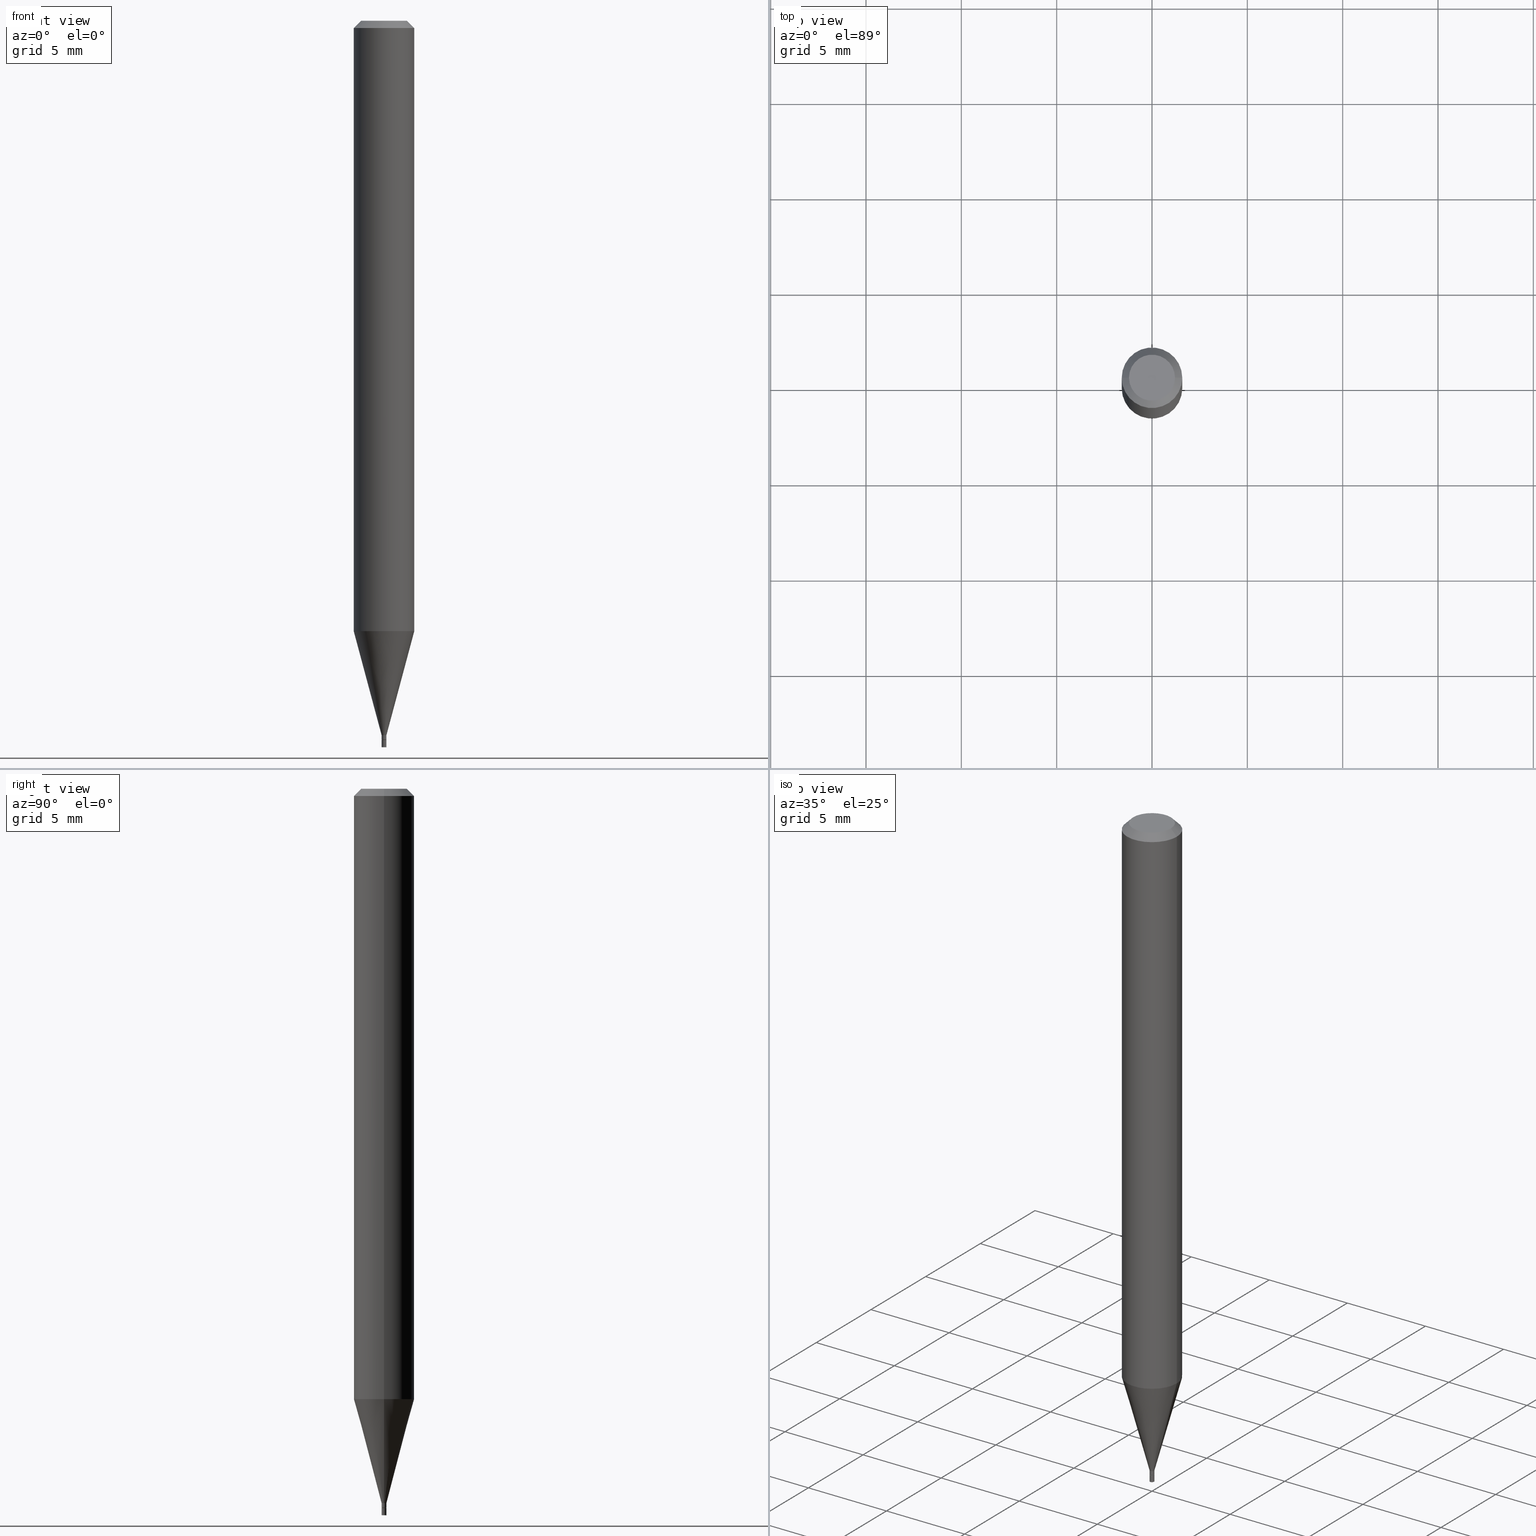
[diagram: canonical four-view strip — front | top / right | iso, engineering-drawing reading convention]
A machine part, canonical four-view strip (front | top / right | iso — engineering-drawing reading convention). The complete STEP part file that produces these views, byte-faithful:
ISO-10303-21;
HEADER;
FILE_DESCRIPTION (( 'STEP AP203' ),
    '1' );
FILE_NAME ('02243.STEP',
    '2024-03-18T19:56:29',
    ( '' ),
    ( '' ),
    'SwSTEP 2.0',
    'SolidWorks 2023',
    '' );
FILE_SCHEMA (( 'CONFIG_CONTROL_DESIGN' ));
ENDSEC;

DATA;
#1 = VECTOR ( 'NONE', #193, 39.37007874015748143 ) ;
#2 = DIRECTION ( 'NONE',  ( -1.000000000000000000, 6.982962677686266711E-15, 0.000000000000000000 ) ) ;
#3 = LINE ( 'NONE', #40, #336 ) ;
#4 = LINE ( 'NONE', #334, #251 ) ;
#5 = PLANE ( 'NONE',  #71 ) ;
#6 = DIRECTION ( 'NONE',  ( -2.445468806185136597E-29, 3.491481338843145583E-15, 1.000000000000000000 ) ) ;
#7 = PERSON_AND_ORGANIZATION ( #386, #438 ) ;
#8 = EDGE_LOOP ( 'NONE', ( #353, #412 ) ) ;
#9 = AXIS2_PLACEMENT_3D ( 'NONE', #346, #240, #381 ) ;
#10 = DIRECTION ( 'NONE',  ( -2.445468806185136597E-29, 3.491481338843145583E-15, 1.000000000000000000 ) ) ;
#11 = CIRCLE ( 'NONE', #360, 0.04749999999999999362 ) ;
#12 = APPROVAL_STATUS ( 'not_yet_approved' ) ;
#13 = CALENDAR_DATE ( 2024, 18, 3 ) ;
#14 = DATE_AND_TIME ( #53, #315 ) ;
#15 = CYLINDRICAL_SURFACE ( 'NONE', #451, 0.004999999999999922909 ) ;
#16 = CONICAL_SURFACE ( 'NONE', #145, 0.004999999999999922042, 0.2617993877991500740 ) ;
#17 = AXIS2_PLACEMENT_3D ( 'NONE', #292, #142, #37 ) ;
#18 = ORIENTED_EDGE ( 'NONE', *, *, #374, .T. ) ;
#19 = FACE_OUTER_BOUND ( 'NONE', #375, .T. ) ;
#20 = ORIENTED_EDGE ( 'NONE', *, *, #269, .F. ) ;
#21 = CARTESIAN_POINT ( 'NONE',  ( 0.004499999999999999660, -5.216273120231659345E-15, -1.485000000000000098 ) ) ;
#22 = ORIENTED_EDGE ( 'NONE', *, *, #306, .F. ) ;
#23 = VERTEX_POINT ( 'NONE', #48 ) ;
#24 = CARTESIAN_POINT ( 'NONE',  ( 3.607066489123076592E-29, -5.149934974793640632E-15, -1.475000000000000311 ) ) ;
#25 = ORIENTED_EDGE ( 'NONE', *, *, #326, .T. ) ;
#26 = AXIS2_PLACEMENT_3D ( 'NONE', #299, #10, #111 ) ;
#27 = VECTOR ( 'NONE', #324, 39.37007874015747433 ) ;
#28 = EDGE_CURVE ( 'NONE', #385, #61, #321, .T. ) ;
#29 = EDGE_LOOP ( 'NONE', ( #387, #248, #351, #170 ) ) ;
#30 = EDGE_CURVE ( 'NONE', #416, #274, #3, .T. ) ;
#31 = CARTESIAN_POINT ( 'NONE',  ( 3.631521177184928138E-29, -5.184849788182071492E-15, -1.485000000000000098 ) ) ;
#32 = VERTEX_POINT ( 'NONE', #45 ) ;
#33 = PLANE ( 'NONE',  #445 ) ;
#34 = DIRECTION ( 'NONE',  ( -2.445468806185136597E-29, 3.491481338843145583E-15, 1.000000000000000000 ) ) ;
#35 = VECTOR ( 'NONE', #156, 39.37007874015748854 ) ;
#36 = CC_DESIGN_APPROVAL ( #288, ( #72 ) ) ;
#37 = DIRECTION ( 'NONE',  ( 1.000000000000000000, -6.982962677686247778E-15, 0.000000000000000000 ) ) ;
#38 = LINE ( 'NONE', #466, #389 ) ;
#39 = CARTESIAN_POINT ( 'NONE',  ( -0.06250000000000000000, -1.782440797268646111E-15, -0.01499999999999999944 ) ) ;
#40 = CARTESIAN_POINT ( 'NONE',  ( -0.004999999999999922909, 3.552713678800446153E-17, -2.459467545127415038E-31 ) ) ;
#41 = EDGE_CURVE ( 'NONE', #167, #459, #338, .T. ) ;
#42 = AXIS2_PLACEMENT_3D ( 'NONE', #366, #435, #225 ) ;
#43 = EDGE_CURVE ( 'NONE', #88, #409, #113, .T. ) ;
#44 = APPROVAL_PERSON_ORGANIZATION ( #231, #288, #268 ) ;
#45 = CARTESIAN_POINT ( 'NONE',  ( -0.004499999999999999660, -5.150226137898756937E-15, -1.485000000000000098 ) ) ;
#46 = DIRECTION ( 'NONE',  ( 2.445468806185136597E-29, -3.491481338843145583E-15, -1.000000000000000000 ) ) ;
#47 = FACE_OUTER_BOUND ( 'NONE', #136, .T. ) ;
#48 = CARTESIAN_POINT ( 'NONE',  ( -0.005000000000000000104, -5.175508761435389793E-15, -1.485000000000000098 ) ) ;
#49 = APPLICATION_PROTOCOL_DEFINITION ( 'international standard', 'config_control_design', 1994, #177 ) ;
#50 = LOCAL_TIME ( 15, 56, 29.00000000000000000, #434 ) ;
#51 = ADVANCED_FACE ( 'NONE', ( #47 ), #5, .F. ) ;
#52 = CC_DESIGN_PERSON_AND_ORGANIZATION_ASSIGNMENT ( #197, #332, ( #72 ) ) ;
#53 = CALENDAR_DATE ( 2024, 18, 3 ) ;
#54 = AXIS2_PLACEMENT_3D ( 'NONE', #241, #203, #342 ) ;
#55 = DIRECTION ( 'NONE',  ( -2.445468806185136597E-29, 3.491481338843145583E-15, 1.000000000000000000 ) ) ;
#56 = ORIENTED_EDGE ( 'NONE', *, *, #363, .T. ) ;
#57 = CYLINDRICAL_SURFACE ( 'NONE', #271, 0.06250000000000000000 ) ;
#58 = ORIENTED_EDGE ( 'NONE', *, *, #30, .T. ) ;
#59 = ORIENTED_EDGE ( 'NONE', *, *, #62, .F. ) ;
#60 = FACE_OUTER_BOUND ( 'NONE', #380, .T. ) ;
#61 = VERTEX_POINT ( 'NONE', #192 ) ;
#62 = EDGE_CURVE ( 'NONE', #409, #347, #460, .T. ) ;
#63 = VERTEX_POINT ( 'NONE', #190 ) ;
#64 = DIRECTION ( 'NONE',  ( 1.000000000000000000, -6.982962677686266711E-15, 4.876176775795935793E-29 ) ) ;
#65 = ORIENTED_EDGE ( 'NONE', *, *, #62, .T. ) ;
#66 = AXIS2_PLACEMENT_3D ( 'NONE', #100, #318, #250 ) ;
#67 = ORIENTED_EDGE ( 'NONE', *, *, #234, .T. ) ;
#68 = CARTESIAN_POINT ( 'NONE',  ( 0.004999999999999922042, -5.184849788182071492E-15, -1.475000000000000311 ) ) ;
#69 = CARTESIAN_POINT ( 'NONE',  ( -0.005000000000000000104, -5.175508761435389793E-15, -1.500000000000000222 ) ) ;
#70 = CYLINDRICAL_SURFACE ( 'NONE', #272, 0.06250000000000000000 ) ;
#71 = AXIS2_PLACEMENT_3D ( 'NONE', #303, #258, #186 ) ;
#72 = SECURITY_CLASSIFICATION ( '', '', #86 ) ;
#73 = FACE_OUTER_BOUND ( 'NONE', #291, .T. ) ;
#74 = DIRECTION ( 'NONE',  ( -2.445468806185136597E-29, 3.491481338843145583E-15, 1.000000000000000000 ) ) ;
#75 = ADVANCED_FACE ( 'NONE', ( #154 ), #150, .T. ) ;
#76 = EDGE_LOOP ( 'NONE', ( #237, #286 ) ) ;
#77 = EDGE_CURVE ( 'NONE', #32, #167, #429, .T. ) ;
#78 = AXIS2_PLACEMENT_3D ( 'NONE', #391, #426, #393 ) ;
#79 = CONICAL_SURFACE ( 'NONE', #371, 0.06250000000000000000, 0.7853981633974373988 ) ;
#80 = CARTESIAN_POINT ( 'NONE',  ( 0.06250000000000000000, -4.811533449433679005E-16, -0.01499999999999999944 ) ) ;
#81 = ORIENTED_EDGE ( 'NONE', *, *, #465, .F. ) ;
#82 = EDGE_LOOP ( 'NONE', ( #98, #148, #419, #279 ) ) ;
#83 = CIRCLE ( 'NONE', #9, 0.005000000000000000104 ) ;
#84 = DATE_TIME_ROLE ( 'creation_date' ) ;
#85 = MANIFOLD_SOLID_BREP ( 'Body-Move/Copy2[2]', #343 ) ;
#86 = SECURITY_CLASSIFICATION_LEVEL ( 'unclassified' ) ;
#87 = DIRECTION ( 'NONE',  ( 1.000000000000000000, -6.982962677686246200E-15, 0.000000000000000000 ) ) ;
#88 = VERTEX_POINT ( 'NONE', #228 ) ;
#89 = ORIENTED_EDGE ( 'NONE', *, *, #283, .F. ) ;
#90 = MANIFOLD_SOLID_BREP ( 'Body-Move/Copy2[1]', #200 ) ;
#91 = VECTOR ( 'NONE', #378, 39.37007874015748143 ) ;
#92 = DIRECTION ( 'NONE',  ( 1.000000000000000000, -6.982962677686265922E-15, 4.876176775795935793E-29 ) ) ;
#93 = VECTOR ( 'NONE', #290, 39.37007874015748143 ) ;
#94 = ORIENTED_EDGE ( 'NONE', *, *, #77, .T. ) ;
#95 = DIRECTION ( 'NONE',  ( -2.445468806185136597E-29, 3.491481338843145583E-15, 1.000000000000000000 ) ) ;
#96 = ORIENTED_EDGE ( 'NONE', *, *, #441, .F. ) ;
#97 = CARTESIAN_POINT ( 'NONE',  ( 0.000000000000000000, 0.000000000000000000, 0.000000000000000000 ) ) ;
#98 = ORIENTED_EDGE ( 'NONE', *, *, #423, .T. ) ;
#99 = EDGE_CURVE ( 'NONE', #32, #416, #333, .T. ) ;
#100 = CARTESIAN_POINT ( 'NONE',  ( 3.630298442781835897E-29, -5.183104047512649988E-15, -1.484500000000000153 ) ) ;
#101 = CARTESIAN_POINT ( 'NONE',  ( 0.004999999999999922042, -5.184849788182071492E-15, -1.475000000000000311 ) ) ;
#102 = CARTESIAN_POINT ( 'NONE',  ( 0.005000000000000000104, -3.491481338843132862E-17, 2.438088387897967984E-31 ) ) ;
#103 = DIRECTION ( 'NONE',  ( 1.000000000000000000, -6.982962677686265922E-15, 4.876176775795935793E-29 ) ) ;
#104 = CIRCLE ( 'NONE', #388, 0.005000000000000000104 ) ;
#105 = CARTESIAN_POINT ( 'NONE',  ( 3.668203209277705088E-31, -5.237222008264718399E-17, -0.01499999999999999944 ) ) ;
#106 = ADVANCED_FACE ( 'NONE', ( #118 ), #406, .T. ) ;
#107 = ADVANCED_BREP_SHAPE_REPRESENTATION ( '02243', ( #90, #85, #256 ), #188 ) ;
#108 = DIRECTION ( 'NONE',  ( 1.000000000000000000, -6.982962677686266711E-15, 0.000000000000000000 ) ) ;
#109 = ADVANCED_FACE ( 'NONE', ( #19 ), #132, .F. ) ;
#110 =( NAMED_UNIT ( * ) SI_UNIT ( $, .STERADIAN. ) SOLID_ANGLE_UNIT ( ) );
#111 = DIRECTION ( 'NONE',  ( 1.000000000000000000, -6.982962677686267499E-15, 4.876176775795935793E-29 ) ) ;
#112 = CALENDAR_DATE ( 2024, 18, 3 ) ;
#113 = LINE ( 'NONE', #80, #1 ) ;
#114 = APPROVAL_PERSON_ORGANIZATION ( #7, #382, #233 ) ;
#115 = DIRECTION ( 'NONE',  ( 1.000000000000000000, 0.000000000000000000, 0.000000000000000000 ) ) ;
#116 = DATE_TIME_ROLE ( 'classification_date' ) ;
#117 = PRODUCT_RELATED_PRODUCT_CATEGORY ( 'detail', '', ( #189 ) ) ;
#118 = FACE_OUTER_BOUND ( 'NONE', #379, .T. ) ;
#119 = COORDINATED_UNIVERSAL_TIME_OFFSET ( 5, 0, .BEHIND. ) ;
#120 = PERSON_AND_ORGANIZATION_ROLE ( 'creator' ) ;
#121 = CIRCLE ( 'NONE', #437, 0.004499999999999999660 ) ;
#122 = ADVANCED_FACE ( 'NONE', ( #410 ), #454, .T. ) ;
#123 = DATE_AND_TIME ( #161, #173 ) ;
#124 = UNCERTAINTY_MEASURE_WITH_UNIT (LENGTH_MEASURE( 1.000000000000000082E-05 ), #191, 'distance_accuracy_value', 'NONE');
#125 = ADVANCED_FACE ( 'NONE', ( #243 ), #418, .F. ) ;
#126 = ORIENTED_EDGE ( 'NONE', *, *, #43, .T. ) ;
#127 = DIRECTION ( 'NONE',  ( -2.445468806185136597E-29, 3.491481338843145583E-15, 1.000000000000000000 ) ) ;
#128 = DIRECTION ( 'NONE',  ( 2.438088387897960049E-29, -3.491481338843145188E-15, -1.000000000000000000 ) ) ;
#129 = ORIENTED_EDGE ( 'NONE', *, *, #352, .F. ) ;
#130 = ORIENTED_EDGE ( 'NONE', *, *, #261, .F. ) ;
#131 = AXIS2_PLACEMENT_3D ( 'NONE', #446, #128, #456 ) ;
#132 = PLANE ( 'NONE',  #354 ) ;
#133 = ORIENTED_EDGE ( 'NONE', *, *, #352, .T. ) ;
#134 = ORIENTED_EDGE ( 'NONE', *, *, #77, .F. ) ;
#135 = DIRECTION ( 'NONE',  ( 1.000000000000000000, -6.982962677686247778E-15, 0.000000000000000000 ) ) ;
#136 = EDGE_LOOP ( 'NONE', ( #415, #277 ) ) ;
#137 = CARTESIAN_POINT ( 'NONE',  ( 3.631521177184928138E-29, -5.184849788182071492E-15, -1.485000000000000098 ) ) ;
#138 = LINE ( 'NONE', #395, #93 ) ;
#139 = AXIS2_PLACEMENT_3D ( 'NONE', #182, #178, #108 ) ;
#140 = APPROVAL_PERSON_ORGANIZATION ( #369, #331, #442 ) ;
#141 = EDGE_LOOP ( 'NONE', ( #168, #18, #130, #89 ) ) ;
#142 = DIRECTION ( 'NONE',  ( -2.445468806185136597E-29, 3.491481338843145583E-15, 1.000000000000000000 ) ) ;
#143 = DIRECTION ( 'NONE',  ( -2.445468806185136597E-29, 3.491481338843145583E-15, 1.000000000000000000 ) ) ;
#144 = DIRECTION ( 'NONE',  ( -0.2588190451025213501, 5.211531920934551042E-15, 0.9659258262890682012 ) ) ;
#145 = AXIS2_PLACEMENT_3D ( 'NONE', #223, #74, #357 ) ;
#146 = PRODUCT_DEFINITION_FORMATION_WITH_SPECIFIED_SOURCE ( 'ANY', '', #189, .NOT_KNOWN. ) ;
#147 = FACE_OUTER_BOUND ( 'NONE', #235, .T. ) ;
#148 = ORIENTED_EDGE ( 'NONE', *, *, #443, .T. ) ;
#149 = DIRECTION ( 'NONE',  ( -2.445468806185136877E-29, 3.491481338843145188E-15, 1.000000000000000000 ) ) ;
#150 = CYLINDRICAL_SURFACE ( 'NONE', #26, 0.004999999999999922909 ) ;
#151 = DATE_AND_TIME ( #405, #329 ) ;
#152 = CARTESIAN_POINT ( 'NONE',  ( 0.004499999999999999660, -5.216273120231659345E-15, -1.485000000000000098 ) ) ;
#153 = LENGTH_MEASURE_WITH_UNIT ( LENGTH_MEASURE( 0.02539999999999999897 ), #298 );
#154 = FACE_OUTER_BOUND ( 'NONE', #278, .T. ) ;
#155 = CC_DESIGN_SECURITY_CLASSIFICATION ( #72, ( #146 ) ) ;
#156 = DIRECTION ( 'NONE',  ( -0.7071067811865647812, 7.493145998870415691E-15, 0.7071067811865301422 ) ) ;
#157 = PERSON_AND_ORGANIZATION_ROLE ( 'design_supplier' ) ;
#158 = DATE_AND_TIME ( #13, #202 ) ;
#159 = EDGE_CURVE ( 'NONE', #174, #392, #194, .T. ) ;
#160 = EDGE_CURVE ( 'NONE', #61, #385, #83, .T. ) ;
#161 = CALENDAR_DATE ( 2024, 18, 3 ) ;
#162 = ORIENTED_EDGE ( 'NONE', *, *, #99, .T. ) ;
#163 = AXIS2_PLACEMENT_3D ( 'NONE', #224, #34, #364 ) ;
#164 = CARTESIAN_POINT ( 'NONE',  ( 0.000000000000000000, 0.000000000000000000, 0.000000000000000000 ) ) ;
#165 = CC_DESIGN_PERSON_AND_ORGANIZATION_ASSIGNMENT ( #407, #403, ( #146 ) ) ;
#166 = DIRECTION ( 'NONE',  ( -2.438088387897960049E-29, 3.491481338843145188E-15, 1.000000000000000000 ) ) ;
#167 = VERTEX_POINT ( 'NONE', #21 ) ;
#168 = ORIENTED_EDGE ( 'NONE', *, *, #160, .T. ) ;
#169 = DIRECTION ( 'NONE',  ( 1.000000000000000000, -6.982962677686265922E-15, 4.876176775795935793E-29 ) ) ;
#170 = ORIENTED_EDGE ( 'NONE', *, *, #159, .F. ) ;
#171 = VECTOR ( 'NONE', #180, 39.37007874015748143 ) ;
#172 = FACE_OUTER_BOUND ( 'NONE', #199, .T. ) ;
#173 = LOCAL_TIME ( 15, 56, 29.00000000000000000, #300 ) ;
#174 = VERTEX_POINT ( 'NONE', #420 ) ;
#175 = EDGE_LOOP ( 'NONE', ( #308, #452, #209, #311 ) ) ;
#176 = DIRECTION ( 'NONE',  ( -2.445468806185136597E-29, 3.491481338843145583E-15, 1.000000000000000000 ) ) ;
#177 = APPLICATION_CONTEXT ( 'configuration controlled 3d designs of mechanical parts and assemblies' ) ;
#178 = DIRECTION ( 'NONE',  ( -2.445468806185136597E-29, 3.491481338843145583E-15, 1.000000000000000000 ) ) ;
#179 = ADVANCED_FACE ( 'NONE', ( #172 ), #15, .T. ) ;
#180 = DIRECTION ( 'NONE',  ( -0.7071067811865398012, 2.468850131082175808E-15, -0.7071067811865552333 ) ) ;
#181 = AXIS2_PLACEMENT_3D ( 'NONE', #105, #396, #2 ) ;
#182 = CARTESIAN_POINT ( 'NONE',  ( 3.668203209277705088E-31, -5.237222008264718399E-17, -0.01499999999999999944 ) ) ;
#183 = LINE ( 'NONE', #68, #27 ) ;
#184 = ADVANCED_FACE ( 'NONE', ( #60 ), #365, .T. ) ;
#185 = CARTESIAN_POINT ( 'NONE',  ( 3.631521177184928138E-29, -5.184849788182071492E-15, -1.485000000000000098 ) ) ;
#186 = DIRECTION ( 'NONE',  ( -1.000000000000000000, 6.982962677686265922E-15, -4.876176775795935793E-29 ) ) ;
#187 = DIRECTION ( 'NONE',  ( -2.445468806185136877E-29, 3.491481338843145188E-15, 1.000000000000000000 ) ) ;
#188 =( GEOMETRIC_REPRESENTATION_CONTEXT ( 3 ) GLOBAL_UNCERTAINTY_ASSIGNED_CONTEXT ( ( #124 ) ) GLOBAL_UNIT_ASSIGNED_CONTEXT ( ( #191, #227, #110 ) ) REPRESENTATION_CONTEXT ( 'NONE', 'WORKASPACE' ) );
#189 = PRODUCT ( '02243', '02243', '', ( #229 ) ) ;
#190 = CARTESIAN_POINT ( 'NONE',  ( 0.005000000000000000104, -5.219764601570503141E-15, -1.485000000000000098 ) ) ;
#191 =( CONVERSION_BASED_UNIT ( 'INCH', #153 ) LENGTH_UNIT ( ) NAMED_UNIT ( #337 ) );
#192 = CARTESIAN_POINT ( 'NONE',  ( 0.005000000000000000104, -5.272136821653149826E-15, -1.500000000000000222 ) ) ;
#193 = DIRECTION ( 'NONE',  ( 0.7071067811865398012, -7.319954787623229224E-15, -0.7071067811865552333 ) ) ;
#194 = CIRCLE ( 'NONE', #54, 0.06250000000000000000 ) ;
#195 = APPROVAL_DATE_TIME ( #151, #331 ) ;
#196 = EDGE_CURVE ( 'NONE', #167, #32, #121, .T. ) ;
#197 = PERSON_AND_ORGANIZATION ( #386, #438 ) ;
#198 = LINE ( 'NONE', #102, #221 ) ;
#199 = EDGE_LOOP ( 'NONE', ( #215, #58, #208, #81 ) ) ;
#200 = CLOSED_SHELL ( 'NONE', ( #246, #319, #122, #51 ) ) ;
#201 = CC_DESIGN_APPROVAL ( #382, ( #146 ) ) ;
#202 = LOCAL_TIME ( 15, 56, 29.00000000000000000, #307 ) ;
#203 = DIRECTION ( 'NONE',  ( -2.445468806185136597E-29, 3.491481338843145583E-15, 1.000000000000000000 ) ) ;
#204 = ORIENTED_EDGE ( 'NONE', *, *, #43, .F. ) ;
#205 = DIRECTION ( 'NONE',  ( -2.445468806185136597E-29, 3.491481338843145583E-15, 1.000000000000000000 ) ) ;
#206 = ORIENTED_EDGE ( 'NONE', *, *, #269, .T. ) ;
#207 = DIRECTION ( 'NONE',  ( 1.000000000000000000, -6.982962677686225690E-15, 0.000000000000000000 ) ) ;
#208 = ORIENTED_EDGE ( 'NONE', *, *, #423, .F. ) ;
#209 = ORIENTED_EDGE ( 'NONE', *, *, #283, .T. ) ;
#210 = AXIS2_PLACEMENT_3D ( 'NONE', #24, #422, #135 ) ;
#211 = FACE_OUTER_BOUND ( 'NONE', #141, .T. ) ;
#212 = ORIENTED_EDGE ( 'NONE', *, *, #99, .F. ) ;
#213 = CIRCLE ( 'NONE', #414, 0.005000000000000000104 ) ;
#214 = EDGE_CURVE ( 'NONE', #459, #416, #305, .T. ) ;
#215 = ORIENTED_EDGE ( 'NONE', *, *, #214, .T. ) ;
#216 = ADVANCED_FACE ( 'NONE', ( #284 ), #280, .T. ) ;
#217 = FACE_OUTER_BOUND ( 'NONE', #29, .T. ) ;
#218 = CC_DESIGN_DATE_AND_TIME_ASSIGNMENT ( #158, #116, ( #72 ) ) ;
#219 = CARTESIAN_POINT ( 'NONE',  ( 0.000000000000000000, 0.000000000000000000, 0.000000000000000000 ) ) ;
#220 = CARTESIAN_POINT ( 'NONE',  ( -0.06250000000000000000, 3.840629472727444916E-16, -0.01499999999999999944 ) ) ;
#221 = VECTOR ( 'NONE', #425, 39.37007874015748143 ) ;
#222 = CIRCLE ( 'NONE', #17, 0.004999999999999922042 ) ;
#223 = CARTESIAN_POINT ( 'NONE',  ( 3.607066489123076592E-29, -5.149934974793640632E-15, -1.475000000000000311 ) ) ;
#224 = CARTESIAN_POINT ( 'NONE',  ( 3.607066489123076592E-29, -5.149934974793640632E-15, -1.475000000000000311 ) ) ;
#225 = DIRECTION ( 'NONE',  ( 1.000000000000000000, -6.982962677686332186E-15, 0.000000000000000000 ) ) ;
#226 = AXIS2_PLACEMENT_3D ( 'NONE', #350, #310, #309 ) ;
#227 =( NAMED_UNIT ( * ) PLANE_ANGLE_UNIT ( ) SI_UNIT ( $, .RADIAN. ) );
#228 = CARTESIAN_POINT ( 'NONE',  ( 0.04749999999999999362, -4.035134999187572707E-16, 3.292288316969910130E-16 ) ) ;
#229 = MECHANICAL_CONTEXT ( 'NONE', #461, 'mechanical' ) ;
#230 = DIRECTION ( 'NONE',  ( -2.445468806185136597E-29, 3.491481338843145583E-15, 1.000000000000000000 ) ) ;
#231 = PERSON_AND_ORGANIZATION ( #386, #438 ) ;
#232 = ORIENTED_EDGE ( 'NONE', *, *, #214, .F. ) ;
#233 = APPROVAL_ROLE ( '' ) ;
#234 = EDGE_CURVE ( 'NONE', #174, #347, #376, .T. ) ;
#235 = EDGE_LOOP ( 'NONE', ( #317, #126, #65, #312 ) ) ;
#236 = FACE_OUTER_BOUND ( 'NONE', #244, .T. ) ;
#237 = ORIENTED_EDGE ( 'NONE', *, *, #441, .T. ) ;
#238 = AXIS2_PLACEMENT_3D ( 'NONE', #275, #95, #87 ) ;
#239 = CONICAL_SURFACE ( 'NONE', #181, 0.06250000000000000000, 0.7853981633974373988 ) ;
#240 = DIRECTION ( 'NONE',  ( -2.445468806185136597E-29, 3.491481338843145583E-15, 1.000000000000000000 ) ) ;
#241 = CARTESIAN_POINT ( 'NONE',  ( 3.082286193725132894E-29, -4.400687794154770769E-15, -1.260407078564790062 ) ) ;
#242 = ORIENTED_EDGE ( 'NONE', *, *, #41, .T. ) ;
#243 = FACE_OUTER_BOUND ( 'NONE', #76, .T. ) ;
#244 = EDGE_LOOP ( 'NONE', ( #25, #67, #59, #450 ) ) ;
#245 = ADVANCED_FACE ( 'NONE', ( #236 ), #57, .T. ) ;
#246 = ADVANCED_FACE ( 'NONE', ( #211 ), #355, .T. ) ;
#247 = CARTESIAN_POINT ( 'NONE',  ( 3.631521177184928138E-29, -5.184849788182071492E-15, -1.485000000000000098 ) ) ;
#248 = ORIENTED_EDGE ( 'NONE', *, *, #306, .T. ) ;
#249 = AXIS2_PLACEMENT_3D ( 'NONE', #325, #362, #323 ) ;
#250 = DIRECTION ( 'NONE',  ( 1.000000000000000000, -6.982962677686246200E-15, 0.000000000000000000 ) ) ;
#251 = VECTOR ( 'NONE', #149, 39.37007874015748143 ) ;
#252 = CARTESIAN_POINT ( 'NONE',  ( 3.576687321579069994E-29, -5.368277968210015545E-15, -1.500000000000000222 ) ) ;
#253 = DIRECTION ( 'NONE',  ( 1.000000000000000000, -6.982962677686332186E-15, 0.000000000000000000 ) ) ;
#254 = DIRECTION ( 'NONE',  ( -2.445468806185136877E-29, 3.491481338843145188E-15, 1.000000000000000000 ) ) ;
#255 = AXIS2_PLACEMENT_3D ( 'NONE', #384, #127, #207 ) ;
#256 = AXIS2_PLACEMENT_3D ( 'NONE', #302, #436, #115 ) ;
#257 = CARTESIAN_POINT ( 'NONE',  ( 0.06249999999999999306, -4.837122961510163228E-15, -1.260407078564790062 ) ) ;
#258 = DIRECTION ( 'NONE',  ( 2.438088387897960049E-29, -3.491481338843145188E-15, -1.000000000000000000 ) ) ;
#259 = DIRECTION ( 'NONE',  ( -2.445468806185136597E-29, 3.491481338843145583E-15, 1.000000000000000000 ) ) ;
#260 = DIRECTION ( 'NONE',  ( 1.000000000000000000, -6.982962677686266711E-15, 0.000000000000000000 ) ) ;
#261 = EDGE_CURVE ( 'NONE', #63, #23, #104, .T. ) ;
#262 = PRODUCT_DEFINITION ( 'UNKNOWN', '', #146, #339 ) ;
#263 = CARTESIAN_POINT ( 'NONE',  ( 3.631521177184928138E-29, -5.184849788182071492E-15, -1.485000000000000098 ) ) ;
#264 = AXIS2_PLACEMENT_3D ( 'NONE', #247, #424, #447 ) ;
#265 = DIRECTION ( 'NONE',  ( -1.000000000000000000, 6.982962677686266711E-15, 0.000000000000000000 ) ) ;
#266 = CARTESIAN_POINT ( 'NONE',  ( -0.004499999999999999660, -5.152875365072866561E-15, -1.485000000000000098 ) ) ;
#267 = DIRECTION ( 'NONE',  ( 0.7071067811865647812, -2.468850131082438104E-15, 0.7071067811865301422 ) ) ;
#268 = APPROVAL_ROLE ( '' ) ;
#269 = EDGE_CURVE ( 'NONE', #416, #459, #370, .T. ) ;
#270 = PERSON_AND_ORGANIZATION_ROLE ( 'design_owner' ) ;
#271 = AXIS2_PLACEMENT_3D ( 'NONE', #97, #313, #64 ) ;
#272 = AXIS2_PLACEMENT_3D ( 'NONE', #219, #259, #294 ) ;
#273 = APPROVAL_DATE_TIME ( #123, #382 ) ;
#274 = VERTEX_POINT ( 'NONE', #390 ) ;
#275 = CARTESIAN_POINT ( 'NONE',  ( 3.630298442781835897E-29, -5.183104047512649988E-15, -1.484500000000000153 ) ) ;
#276 = CARTESIAN_POINT ( 'NONE',  ( 3.631521177184928138E-29, -5.184849788182071492E-15, -1.485000000000000098 ) ) ;
#277 = ORIENTED_EDGE ( 'NONE', *, *, #373, .T. ) ;
#278 = EDGE_LOOP ( 'NONE', ( #359, #206, #356, #22 ) ) ;
#279 = ORIENTED_EDGE ( 'NONE', *, *, #431, .F. ) ;
#280 = CONICAL_SURFACE ( 'NONE', #210, 0.004999999999999922042, 0.2617993877991500740 ) ;
#281 = DIRECTION ( 'NONE',  ( 1.000000000000000000, -6.982962677686225690E-15, 0.000000000000000000 ) ) ;
#282 = ORIENTED_EDGE ( 'NONE', *, *, #234, .F. ) ;
#283 = EDGE_CURVE ( 'NONE', #61, #63, #198, .T. ) ;
#284 = FACE_OUTER_BOUND ( 'NONE', #82, .T. ) ;
#285 = EDGE_CURVE ( 'NONE', #453, #347, #296, .T. ) ;
#286 = ORIENTED_EDGE ( 'NONE', *, *, #341, .T. ) ;
#287 = DIRECTION ( 'NONE',  ( 1.000000000000000000, -6.982962677686267499E-15, 4.876176775795935793E-29 ) ) ;
#288 = APPROVAL ( #367, 'UNSPECIFIED' ) ;
#289 = CIRCLE ( 'NONE', #78, 0.04749999999999999362 ) ;
#290 = DIRECTION ( 'NONE',  ( -2.445468806185136877E-29, 3.491481338843145188E-15, 1.000000000000000000 ) ) ;
#291 = EDGE_LOOP ( 'NONE', ( #282, #428, #56, #129 ) ) ;
#292 = CARTESIAN_POINT ( 'NONE',  ( 3.607066489123076592E-29, -5.149934974793640632E-15, -1.475000000000000311 ) ) ;
#293 = DIRECTION ( 'NONE',  ( 1.000000000000000000, -6.982962677686267499E-15, 4.852736867747366768E-29 ) ) ;
#294 = DIRECTION ( 'NONE',  ( 1.000000000000000000, -6.982962677686266711E-15, 4.876176775795935793E-29 ) ) ;
#295 = CIRCLE ( 'NONE', #163, 0.004999999999999922042 ) ;
#296 = LINE ( 'NONE', #220, #171 ) ;
#297 = ADVANCED_FACE ( 'NONE', ( #217 ), #16, .T. ) ;
#298 =( LENGTH_UNIT ( ) NAMED_UNIT ( * ) SI_UNIT ( $, .METRE. ) );
#299 = CARTESIAN_POINT ( 'NONE',  ( 0.000000000000000000, 0.000000000000000000, 0.000000000000000000 ) ) ;
#300 = COORDINATED_UNIVERSAL_TIME_OFFSET ( 5, 0, .BEHIND. ) ;
#301 = CC_DESIGN_PERSON_AND_ORGANIZATION_ASSIGNMENT ( #372, #157, ( #146 ) ) ;
#302 = CARTESIAN_POINT ( 'NONE',  ( 0.000000000000000000, 0.000000000000000000, 0.000000000000000000 ) ) ;
#303 = CARTESIAN_POINT ( 'NONE',  ( 3.491481338846764088E-17, 0.004999999999994815016, -1.485000000000000098 ) ) ;
#304 = APPROVAL_STATUS ( 'not_yet_approved' ) ;
#305 = CIRCLE ( 'NONE', #238, 0.004999999999999922909 ) ;
#306 = EDGE_CURVE ( 'NONE', #274, #383, #295, .T. ) ;
#307 = COORDINATED_UNIVERSAL_TIME_OFFSET ( 5, 0, .BEHIND. ) ;
#308 = ORIENTED_EDGE ( 'NONE', *, *, #374, .F. ) ;
#309 = DIRECTION ( 'NONE',  ( 1.000000000000000000, -6.982962677686265922E-15, 4.876176775795935793E-29 ) ) ;
#310 = DIRECTION ( 'NONE',  ( -2.445468806185136597E-29, 3.491481338843145583E-15, 1.000000000000000000 ) ) ;
#311 = ORIENTED_EDGE ( 'NONE', *, *, #373, .F. ) ;
#312 = ORIENTED_EDGE ( 'NONE', *, *, #285, .F. ) ;
#313 = DIRECTION ( 'NONE',  ( -2.445468806185136597E-29, 3.491481338843145583E-15, 1.000000000000000000 ) ) ;
#314 = ORIENTED_EDGE ( 'NONE', *, *, #196, .T. ) ;
#315 = LOCAL_TIME ( 15, 56, 29.00000000000000000, #119 ) ;
#316 = DIRECTION ( 'NONE',  ( -2.445468806185136597E-29, 3.491481338843145583E-15, 1.000000000000000000 ) ) ;
#317 = ORIENTED_EDGE ( 'NONE', *, *, #341, .F. ) ;
#318 = DIRECTION ( 'NONE',  ( -2.445468806185136597E-29, 3.491481338843145583E-15, 1.000000000000000000 ) ) ;
#319 = ADVANCED_FACE ( 'NONE', ( #432 ), #33, .F. ) ;
#320 = CARTESIAN_POINT ( 'NONE',  ( 0.06250000000000000000, -4.364351673553916694E-16, 3.047610484872459871E-30 ) ) ;
#321 = CIRCLE ( 'NONE', #42, 0.005000000000000000104 ) ;
#322 = VECTOR ( 'NONE', #254, 39.37007874015748143 ) ;
#323 = DIRECTION ( 'NONE',  ( 1.000000000000000000, -6.982962677686262766E-15, 0.000000000000000000 ) ) ;
#324 = DIRECTION ( 'NONE',  ( 0.2588190451025213501, 1.565188264969621968E-15, 0.9659258262890682012 ) ) ;
#325 = CARTESIAN_POINT ( 'NONE',  ( 3.082286193725132894E-29, -4.400687794154770769E-15, -1.260407078564790062 ) ) ;
#326 = EDGE_CURVE ( 'NONE', #392, #174, #328, .T. ) ;
#327 = CARTESIAN_POINT ( 'NONE',  ( -0.04749999999999999362, 3.578768372314216422E-16, 3.292288316969860333E-16 ) ) ;
#328 = CIRCLE ( 'NONE', #249, 0.06250000000000000000 ) ;
#329 = LOCAL_TIME ( 15, 56, 29.00000000000000000, #340 ) ;
#330 = CARTESIAN_POINT ( 'NONE',  ( 3.668203209277705088E-31, -5.237222008264718399E-17, -0.01499999999999999944 ) ) ;
#331 = APPROVAL ( #304, 'UNSPECIFIED' ) ;
#332 = PERSON_AND_ORGANIZATION_ROLE ( 'classification_officer' ) ;
#333 = LINE ( 'NONE', #266, #35 ) ;
#334 = CARTESIAN_POINT ( 'NONE',  ( 0.004999999999999922909, -3.491481338843079861E-17, 2.438088387897930324E-31 ) ) ;
#335 = SHAPE_DEFINITION_REPRESENTATION ( #398, #107 ) ;
#336 = VECTOR ( 'NONE', #187, 39.37007874015748143 ) ;
#337 = DIMENSIONAL_EXPONENTS ( 1.000000000000000000, 0.000000000000000000, 0.000000000000000000, 0.000000000000000000, 0.000000000000000000, 0.000000000000000000, 0.000000000000000000 ) ;
#338 = LINE ( 'NONE', #152, #399 ) ;
#339 = DESIGN_CONTEXT ( 'detailed design', #177, 'design' ) ;
#340 = COORDINATED_UNIVERSAL_TIME_OFFSET ( 5, 0, .BEHIND. ) ;
#341 = EDGE_CURVE ( 'NONE', #88, #453, #289, .T. ) ;
#342 = DIRECTION ( 'NONE',  ( 1.000000000000000000, -6.982962677686262766E-15, 0.000000000000000000 ) ) ;
#343 = CLOSED_SHELL ( 'NONE', ( #179, #106, #457, #245, #216, #297, #404, #455, #125, #109, #184, #75 ) ) ;
#344 = CIRCLE ( 'NONE', #139, 0.06250000000000000000 ) ;
#345 = ORIENTED_EDGE ( 'NONE', *, *, #285, .T. ) ;
#346 = CARTESIAN_POINT ( 'NONE',  ( 3.668203209277704895E-29, -5.237222008264718177E-15, -1.500000000000000222 ) ) ;
#347 = VERTEX_POINT ( 'NONE', #39 ) ;
#348 = DIRECTION ( 'NONE',  ( 1.000000000000000000, -6.982962677686332186E-15, 0.000000000000000000 ) ) ;
#349 = ORIENTED_EDGE ( 'NONE', *, *, #196, .F. ) ;
#350 = CARTESIAN_POINT ( 'NONE',  ( 0.000000000000000000, 0.000000000000000000, 0.000000000000000000 ) ) ;
#351 = ORIENTED_EDGE ( 'NONE', *, *, #431, .T. ) ;
#352 = EDGE_CURVE ( 'NONE', #347, #409, #344, .T. ) ;
#353 = ORIENTED_EDGE ( 'NONE', *, *, #160, .F. ) ;
#354 = AXIS2_PLACEMENT_3D ( 'NONE', #276, #166, #92 ) ;
#355 = CYLINDRICAL_SURFACE ( 'NONE', #413, 0.005000000000000000104 ) ;
#356 = ORIENTED_EDGE ( 'NONE', *, *, #465, .T. ) ;
#357 = DIRECTION ( 'NONE',  ( 1.000000000000000000, -6.982962677686247778E-15, 0.000000000000000000 ) ) ;
#358 = CARTESIAN_POINT ( 'NONE',  ( 0.06250000000000000000, -4.888073874380388472E-16, -0.01499999999999999944 ) ) ;
#359 = ORIENTED_EDGE ( 'NONE', *, *, #30, .F. ) ;
#360 = AXIS2_PLACEMENT_3D ( 'NONE', #463, #143, #293 ) ;
#361 = LINE ( 'NONE', #320, #322 ) ;
#362 = DIRECTION ( 'NONE',  ( -2.445468806185136597E-29, 3.491481338843145583E-15, 1.000000000000000000 ) ) ;
#363 = EDGE_CURVE ( 'NONE', #392, #409, #361, .T. ) ;
#364 = DIRECTION ( 'NONE',  ( 1.000000000000000000, -6.982962677686247778E-15, 0.000000000000000000 ) ) ;
#365 = CONICAL_SURFACE ( 'NONE', #255, 0.004499999999999999660, 0.7853981633974728149 ) ;
#366 = CARTESIAN_POINT ( 'NONE',  ( 3.668203209277704895E-29, -5.237222008264718177E-15, -1.500000000000000222 ) ) ;
#367 = APPROVAL_STATUS ( 'not_yet_approved' ) ;
#368 = APPLICATION_PROTOCOL_DEFINITION ( 'international standard', 'config_control_design', 1994, #461 ) ;
#369 = PERSON_AND_ORGANIZATION ( #386, #438 ) ;
#370 = CIRCLE ( 'NONE', #66, 0.004999999999999922909 ) ;
#371 = AXIS2_PLACEMENT_3D ( 'NONE', #330, #46, #265 ) ;
#372 = PERSON_AND_ORGANIZATION ( #386, #438 ) ;
#373 = EDGE_CURVE ( 'NONE', #23, #63, #213, .T. ) ;
#374 = EDGE_CURVE ( 'NONE', #385, #23, #138, .T. ) ;
#375 = EDGE_LOOP ( 'NONE', ( #349, #134 ) ) ;
#376 = LINE ( 'NONE', #411, #91 ) ;
#377 = AXIS2_PLACEMENT_3D ( 'NONE', #263, #6, #400 ) ;
#378 = DIRECTION ( 'NONE',  ( -2.445468806185136877E-29, 3.491481338843145188E-15, 1.000000000000000000 ) ) ;
#379 = EDGE_LOOP ( 'NONE', ( #314, #162, #232, #448 ) ) ;
#380 = EDGE_LOOP ( 'NONE', ( #212, #94, #242, #20 ) ) ;
#381 = DIRECTION ( 'NONE',  ( 1.000000000000000000, -6.982962677686332186E-15, 0.000000000000000000 ) ) ;
#382 = APPROVAL ( #12, 'UNSPECIFIED' ) ;
#383 = VERTEX_POINT ( 'NONE', #101 ) ;
#384 = CARTESIAN_POINT ( 'NONE',  ( 3.631521177184928138E-29, -5.184849788182071492E-15, -1.485000000000000098 ) ) ;
#385 = VERTEX_POINT ( 'NONE', #69 ) ;
#386 = PERSON ( 'UNSPECIFIED', 'UNSPECIFIED', 'UNSPECIFIED', ('UNSPECIFIED'), ('UNSPECIFIED'), ('UNSPECIFIED') ) ;
#387 = ORIENTED_EDGE ( 'NONE', *, *, #443, .F. ) ;
#388 = AXIS2_PLACEMENT_3D ( 'NONE', #31, #205, #348 ) ;
#389 = VECTOR ( 'NONE', #144, 39.37007874015747433 ) ;
#390 = CARTESIAN_POINT ( 'NONE',  ( -0.004999999999999922042, -4.535503211155172266E-15, -1.475000000000000311 ) ) ;
#391 = CARTESIAN_POINT ( 'NONE',  ( -8.051188380117617343E-45, 1.149496322079166104E-30, 3.292288316969884985E-16 ) ) ;
#392 = VERTEX_POINT ( 'NONE', #257 ) ;
#393 = DIRECTION ( 'NONE',  ( 1.000000000000000000, -6.982962677686267499E-15, 4.852736867747366768E-29 ) ) ;
#394 = AXIS2_PLACEMENT_3D ( 'NONE', #433, #230, #260 ) ;
#395 = CARTESIAN_POINT ( 'NONE',  ( -0.005000000000000000104, 3.552713678800501003E-17, -2.459467545127453136E-31 ) ) ;
#396 = DIRECTION ( 'NONE',  ( 2.445468806185136597E-29, -3.491481338843145583E-15, -1.000000000000000000 ) ) ;
#397 = CARTESIAN_POINT ( 'NONE',  ( 0.004999999999999922909, -5.218018860901080849E-15, -1.484500000000000153 ) ) ;
#398 = PRODUCT_DEFINITION_SHAPE ( 'NONE', 'NONE',  #262 ) ;
#399 = VECTOR ( 'NONE', #267, 39.37007874015748854 ) ;
#400 = DIRECTION ( 'NONE',  ( 1.000000000000000000, -6.982962677686225690E-15, 0.000000000000000000 ) ) ;
#401 = DATE_AND_TIME ( #112, #50 ) ;
#402 = CC_DESIGN_APPROVAL ( #331, ( #262 ) ) ;
#403 = PERSON_AND_ORGANIZATION_ROLE ( 'creator' ) ;
#404 = ADVANCED_FACE ( 'NONE', ( #73 ), #70, .T. ) ;
#405 = CALENDAR_DATE ( 2024, 18, 3 ) ;
#406 = CONICAL_SURFACE ( 'NONE', #264, 0.004499999999999999660, 0.7853981633974728149 ) ;
#407 = PERSON_AND_ORGANIZATION ( #386, #438 ) ;
#408 = CC_DESIGN_DATE_AND_TIME_ASSIGNMENT ( #14, #84, ( #262 ) ) ;
#409 = VERTEX_POINT ( 'NONE', #358 ) ;
#410 = FACE_OUTER_BOUND ( 'NONE', #175, .T. ) ;
#411 = CARTESIAN_POINT ( 'NONE',  ( -0.06250000000000000000, 4.440892098500626162E-16, -3.074334431409316114E-30 ) ) ;
#412 = ORIENTED_EDGE ( 'NONE', *, *, #28, .F. ) ;
#413 = AXIS2_PLACEMENT_3D ( 'NONE', #449, #176, #169 ) ;
#414 = AXIS2_PLACEMENT_3D ( 'NONE', #185, #458, #253 ) ;
#415 = ORIENTED_EDGE ( 'NONE', *, *, #261, .T. ) ;
#416 = VERTEX_POINT ( 'NONE', #462 ) ;
#417 = CC_DESIGN_PERSON_AND_ORGANIZATION_ASSIGNMENT ( #440, #120, ( #262 ) ) ;
#418 = PLANE ( 'NONE',  #131 ) ;
#419 = ORIENTED_EDGE ( 'NONE', *, *, #326, .F. ) ;
#420 = CARTESIAN_POINT ( 'NONE',  ( -0.06249999999999999306, -3.956598584304708153E-15, -1.260407078564790062 ) ) ;
#421 = EDGE_LOOP ( 'NONE', ( #204, #96, #345, #133 ) ) ;
#422 = DIRECTION ( 'NONE',  ( -2.445468806185136597E-29, 3.491481338843145583E-15, 1.000000000000000000 ) ) ;
#423 = EDGE_CURVE ( 'NONE', #383, #274, #222, .T. ) ;
#424 = DIRECTION ( 'NONE',  ( -2.445468806185136597E-29, 3.491481338843145583E-15, 1.000000000000000000 ) ) ;
#425 = DIRECTION ( 'NONE',  ( -2.445468806185136877E-29, 3.491481338843145188E-15, 1.000000000000000000 ) ) ;
#426 = DIRECTION ( 'NONE',  ( -2.445468806185136597E-29, 3.491481338843145583E-15, 1.000000000000000000 ) ) ;
#427 = DIRECTION ( 'NONE',  ( -2.438088387897960049E-29, 3.491481338843145188E-15, 1.000000000000000000 ) ) ;
#428 = ORIENTED_EDGE ( 'NONE', *, *, #159, .T. ) ;
#429 = CIRCLE ( 'NONE', #377, 0.004499999999999999660 ) ;
#430 = FACE_OUTER_BOUND ( 'NONE', #421, .T. ) ;
#431 = EDGE_CURVE ( 'NONE', #383, #392, #183, .T. ) ;
#432 = FACE_OUTER_BOUND ( 'NONE', #8, .T. ) ;
#433 = CARTESIAN_POINT ( 'NONE',  ( 3.668203209277705088E-31, -5.237222008264718399E-17, -0.01499999999999999944 ) ) ;
#434 = COORDINATED_UNIVERSAL_TIME_OFFSET ( 5, 0, .BEHIND. ) ;
#435 = DIRECTION ( 'NONE',  ( -2.445468806185136597E-29, 3.491481338843145583E-15, 1.000000000000000000 ) ) ;
#436 = DIRECTION ( 'NONE',  ( 0.000000000000000000, 0.000000000000000000, 1.000000000000000000 ) ) ;
#437 = AXIS2_PLACEMENT_3D ( 'NONE', #137, #55, #281 ) ;
#438 = ORGANIZATION ( 'UNSPECIFIED', 'UNSPECIFIED', '' ) ;
#439 = PERSON_AND_ORGANIZATION ( #386, #438 ) ;
#440 = PERSON_AND_ORGANIZATION ( #386, #438 ) ;
#441 = EDGE_CURVE ( 'NONE', #453, #88, #11, .T. ) ;
#442 = APPROVAL_ROLE ( '' ) ;
#443 = EDGE_CURVE ( 'NONE', #274, #174, #38, .T. ) ;
#444 = APPROVAL_DATE_TIME ( #401, #288 ) ;
#445 = AXIS2_PLACEMENT_3D ( 'NONE', #252, #427, #103 ) ;
#446 = CARTESIAN_POINT ( 'NONE',  ( 3.316907271900976096E-16, 0.04749999999999999362, -1.230947746555162994E-18 ) ) ;
#447 = DIRECTION ( 'NONE',  ( 1.000000000000000000, -6.982962677686225690E-15, 0.000000000000000000 ) ) ;
#448 = ORIENTED_EDGE ( 'NONE', *, *, #41, .F. ) ;
#449 = CARTESIAN_POINT ( 'NONE',  ( 0.000000000000000000, 0.000000000000000000, 0.000000000000000000 ) ) ;
#450 = ORIENTED_EDGE ( 'NONE', *, *, #363, .F. ) ;
#451 = AXIS2_PLACEMENT_3D ( 'NONE', #164, #316, #287 ) ;
#452 = ORIENTED_EDGE ( 'NONE', *, *, #28, .T. ) ;
#453 = VERTEX_POINT ( 'NONE', #327 ) ;
#454 = CYLINDRICAL_SURFACE ( 'NONE', #226, 0.005000000000000000104 ) ;
#455 = ADVANCED_FACE ( 'NONE', ( #430 ), #239, .T. ) ;
#456 = DIRECTION ( 'NONE',  ( -1.000000000000000000, 6.982962677686265922E-15, -4.876176775795935793E-29 ) ) ;
#457 = ADVANCED_FACE ( 'NONE', ( #147 ), #79, .T. ) ;
#458 = DIRECTION ( 'NONE',  ( -2.445468806185136597E-29, 3.491481338843145583E-15, 1.000000000000000000 ) ) ;
#459 = VERTEX_POINT ( 'NONE', #397 ) ;
#460 = CIRCLE ( 'NONE', #394, 0.06250000000000000000 ) ;
#461 = APPLICATION_CONTEXT ( 'configuration controlled 3d designs of mechanical parts and assemblies' ) ;
#462 = CARTESIAN_POINT ( 'NONE',  ( -0.004999999999999922909, -5.147576910724645736E-15, -1.484500000000000153 ) ) ;
#463 = CARTESIAN_POINT ( 'NONE',  ( -8.051188380117617343E-45, 1.149496322079166104E-30, 3.292288316969884985E-16 ) ) ;
#464 = CC_DESIGN_PERSON_AND_ORGANIZATION_ASSIGNMENT ( #439, #270, ( #189 ) ) ;
#465 = EDGE_CURVE ( 'NONE', #459, #383, #4, .T. ) ;
#466 = CARTESIAN_POINT ( 'NONE',  ( -0.004999999999999922042, -5.114407838005636380E-15, -1.475000000000000311 ) ) ;
ENDSEC;
END-ISO-10303-21;
